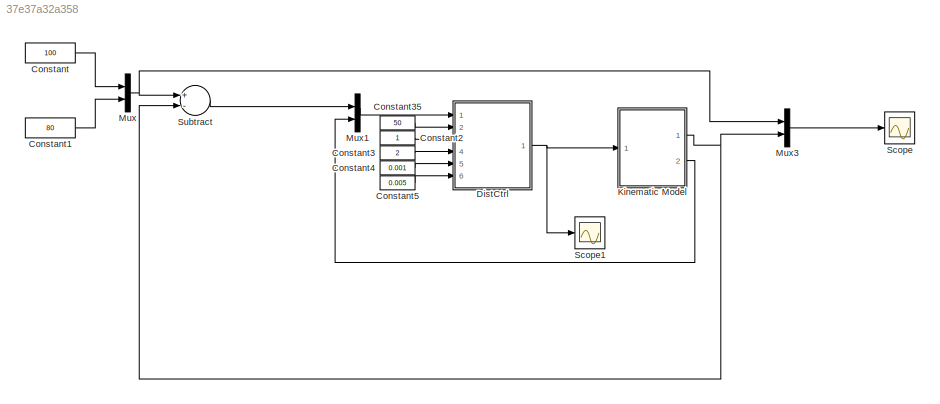
MODEL slx_37e37a32a358
KIND model
CONFIG AbsTol = auto
CONFIG EnableMultiTasking = off
CONFIG FixedStep = auto
CONFIG MaxStep = auto
CONFIG MinStep = auto
CONFIG RelTol = 1e-3
CONFIG SampleTimeConstraint = Unconstrained
CONFIG Solver = VariableStepAuto
CONFIG SolverName = VariableStepAuto
CONFIG StartTime = 0.0
CONFIG StopTime = 30
BLOCK [Constant] Constant
  Value = 100
BLOCK [Constant] Constant1
  Value = 80
BLOCK [Constant] Constant2
BLOCK [Constant] Constant3
  Value = 2
BLOCK [Constant] Constant35
  Value = 50
BLOCK [Constant] Constant4
  Value = 0.001
BLOCK [Constant] Constant5
  Value = 0.005
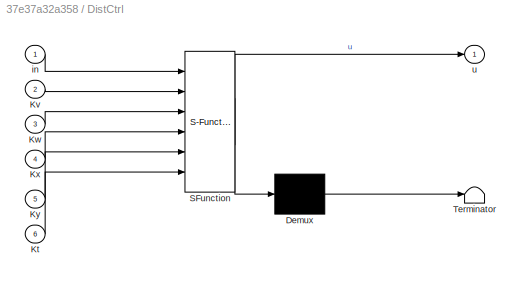
BLOCK [SubSystem] DistCtrl
  ErrorFcn = Stateflow.Translate.translate
  PermitHierarchicalResolution = ExplicitOnly
  Ports = [6, 1]
  RequestExecContextInheritance = off
  SFBlockType = MATLAB Function
  TreatAsAtomicUnit = on
  Variant = off
BLOCK [Demux] DistCtrl/ Demux 
  Outputs = 1
  Ports = [1, 1]
BLOCK [S-Function] DistCtrl/ SFunction 
  EnableBusSupport = on
  FunctionName = sf_sfun
  PortCounts = [6 2]
  Ports = [6, 2]
  SFcnIsStateOwnerBlock = off
  SFunctionDeploymentMode = off
  Tag = Stateflow S-Function Unicycle_1 6
BLOCK [Terminator] DistCtrl/ Terminator 
BLOCK [Inport] DistCtrl/Kt
  IconDisplay = Port number
  Port = 6
BLOCK [Inport] DistCtrl/Kv
  IconDisplay = Port number
  Port = 2
BLOCK [Inport] DistCtrl/Kw
  IconDisplay = Port number
  Port = 3
BLOCK [Inport] DistCtrl/Kx
  IconDisplay = Port number
  Port = 4
BLOCK [Inport] DistCtrl/Ky
  IconDisplay = Port number
  Port = 5
BLOCK [Inport] DistCtrl/in
  IconDisplay = Port number
BLOCK [Outport] DistCtrl/u
  IconDisplay = Port number
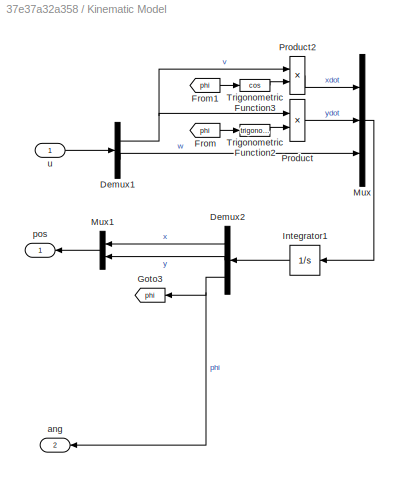
BLOCK [SubSystem] Kinematic Model
  Ports = [1, 2]
  RequestExecContextInheritance = off
  Variant = off
BLOCK [Demux] Kinematic Model/Demux1
  DisplayOption = bar
  Outputs = 2
  Ports = [1, 2]
BLOCK [Demux] Kinematic Model/Demux2
  DisplayOption = bar
  Outputs = 3
  Ports = [1, 3]
BLOCK [From] Kinematic Model/From
  GotoTag = phi
BLOCK [From] Kinematic Model/From1
  GotoTag = phi
BLOCK [Goto] Kinematic Model/Goto3
  GotoTag = phi
BLOCK [Integrator] Kinematic Model/Integrator1
  Ports = [1, 1]
BLOCK [Mux] Kinematic Model/Mux
  DisplayOption = bar
  Inputs = 3
  Ports = [3, 1]
BLOCK [Mux] Kinematic Model/Mux1
  DisplayOption = bar
  Inputs = 2
  Ports = [2, 1]
BLOCK [Product] Kinematic Model/Product
  InputSameDT = off
  OutDataTypeStr = Inherit: Inherit via internal rule
  Ports = [2, 1]
  RndMeth = Floor
  SaturateOnIntegerOverflow = off
BLOCK [Product] Kinematic Model/Product2
  InputSameDT = off
  OutDataTypeStr = Inherit: Inherit via internal rule
  Ports = [2, 1]
  RndMeth = Floor
  SaturateOnIntegerOverflow = off
BLOCK [Trigonometry] Kinematic Model/Trigonometric Function2
  Ports = [1, 1]
BLOCK [Trigonometry] Kinematic Model/Trigonometric Function3
  Operator = cos
  Ports = [1, 1]
BLOCK [Outport] Kinematic Model/ang
  IconDisplay = Port number
  Port = 2
BLOCK [Outport] Kinematic Model/pos
  IconDisplay = Port number
BLOCK [Inport] Kinematic Model/u
  IconDisplay = Port number
BLOCK [Mux] Mux
  DisplayOption = bar
  Inputs = 2
  Ports = [2, 1]
BLOCK [Mux] Mux1
  DisplayOption = bar
  Inputs = 2
  Ports = [2, 1]
BLOCK [Mux] Mux3
  DisplayOption = bar
  Inputs = 2
  Ports = [2, 1]
BLOCK [Scope] Scope
  NumInputPorts = 1
  Ports = [1]
  ScopeSpecificationString = Simulink.scopes.TimeScopeBlockCfg('CurrentConfiguration', extmgr.ConfigurationSet(extmgr.Configuration('Core','General UI',true),extmgr.Configuration('Core','Source UI',true),extmgr.Configuration('Sources','WiredSimulink',true,'DataLoggingVariableName','pos','DataLogging',true,'DataLoggingSaveFormat','Array','SampleTime','0.1'),extmgr.Configuration('Visuals','Time Domain',true,'SerializedDisplays'...<+1501ch>
BLOCK [Scope] Scope1
  NumInputPorts = 1
  Ports = [1]
  ScopeSpecificationString = Simulink.scopes.TimeScopeBlockCfg('CurrentConfiguration', extmgr.ConfigurationSet(extmgr.Configuration('Core','General UI',true),extmgr.Configuration('Core','Source UI',true),extmgr.Configuration('Sources','WiredSimulink',true,'DataLoggingVariableName','ScopeData1'),extmgr.Configuration('Visuals','Time Domain',true,'SerializedDisplays',{struct('MinYLimReal','401.27868','MaxYLimReal','420.51439','Y...<+1448ch>
BLOCK [Sum] Subtract
  InputSameDT = off
  Inputs = +-
  OutDataTypeStr = Inherit: Inherit via internal rule
  Ports = [2, 1]
  SaturateOnIntegerOverflow = off
LINE Constant1:1 -> Mux:2
LINE Constant2:1 -> DistCtrl:3
LINE Constant35:1 -> DistCtrl:2
LINE Constant3:1 -> DistCtrl:4
LINE Constant4:1 -> DistCtrl:5
LINE Constant5:1 -> DistCtrl:6
LINE Constant:1 -> Mux:1
NET DistCtrl:1 -> Kinematic Model:1, Scope1:1
NET Kinematic Model/Demux1:1 -> Kinematic Model/Product2:1, Kinematic Model/Product:1
LINE Kinematic Model/Demux1:2 -> Kinematic Model/Mux:3
LINE Kinematic Model/Demux2:1 -> Kinematic Model/Mux1:1
LINE Kinematic Model/Demux2:2 -> Kinematic Model/Mux1:2
NET Kinematic Model/Demux2:3 -> Kinematic Model/Goto3:1, Kinematic Model/ang:1
LINE Kinematic Model/From1:1 -> Kinematic Model/Trigonometric Function3:1
LINE Kinematic Model/From:1 -> Kinematic Model/Trigonometric Function2:1
LINE Kinematic Model/Integrator1:1 -> Kinematic Model/Demux2:1
LINE Kinematic Model/Mux1:1 -> Kinematic Model/pos:1
LINE Kinematic Model/Mux:1 -> Kinematic Model/Integrator1:1
LINE Kinematic Model/Product2:1 -> Kinematic Model/Mux:1
LINE Kinematic Model/Product:1 -> Kinematic Model/Mux:2
LINE Kinematic Model/Trigonometric Function2:1 -> Kinematic Model/Product:2
LINE Kinematic Model/Trigonometric Function3:1 -> Kinematic Model/Product2:2
LINE Kinematic Model/u:1 -> Kinematic Model/Demux1:1
NET Kinematic Model:1 -> Mux3:2, Subtract:2
LINE Kinematic Model:2 -> Mux1:2
LINE Mux1:1 -> DistCtrl:1
LINE Mux3:1 -> Scope:1
NET Mux:1 -> Mux3:1, Subtract:1
LINE Subtract:1 -> Mux1:1
note: NET lines group one-source signal fan-out (src -> all destinations, sorted); 1:1 wires keep LINE
CHART DistCtrl states=1 transitions=1
  STATE_LABEL 'eML_blk_kernel()'
  STATE_LABEL 'SCRIPT:\nfunction u   = DistCtrl(in,Kv,Kw,Kx,Ky,Kt)\nex = in(1);\ney = in(2);\n\n% ex = cos(in(3))*in(1)+sin(in(3))*in(2); \n% ey = -sin(in(3))*in(1)+cos(in(3))*in(2); \ntheta = in(3);\ntheta_d = atan2(ey,ex);\net = theta_d - theta; \nvd = sqrt(ex^2+ey^2);\nwd = 1/(1+(theta_d)^2);\n% Sjavash\n\n\n% Kb = 0.1;\n% v = Kv*vd*cos(et)/(vd+Kb);\n% w = -Kw*et;%+wd;\n\n%Luca\n% Kx=1.0; \n% Ky=1; \n% Kt=0.01;\nu1 = -Kx*ex;\nu2 = -...<+271ch>'
